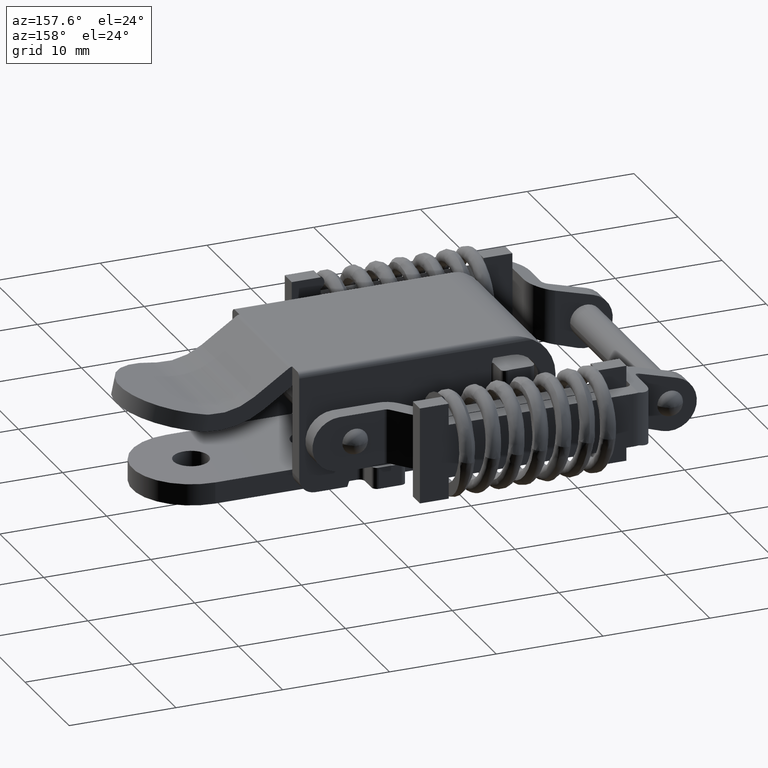
[diagram: clean part render]
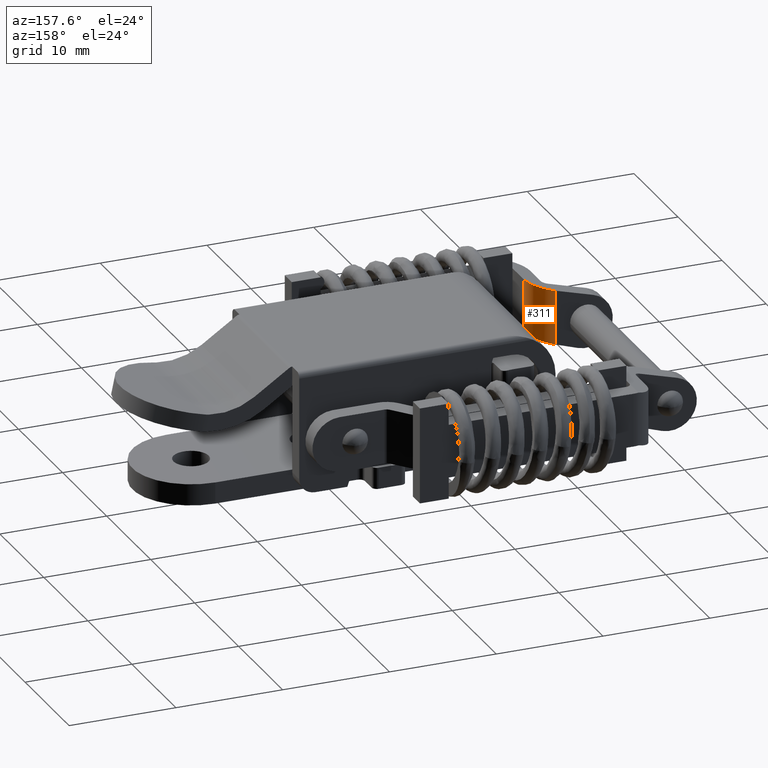
[diagram: same view with one face highlighted and labeled with its STEP entity id]
A machine part, auxiliary view. The second image highlights one B-rep face of the part: STEP entity #311.
In plain terms, the highlighted cylindrical surface (edge-blend (fillet) strip) has radius 2.1 mm, axis along (0, 0, -1).
Its self-contained STEP definition (entity closure, byte-faithful):
#311=ADVANCED_FACE('',(#1349),#1348,.T.);
#1348=CYLINDRICAL_SURFACE('',#7454,2.10000000000E+00);
#1349=FACE_OUTER_BOUND('',#7455,.T.);
#7451=CARTESIAN_POINT('',(-1.08500000000E+01,3.42173576355E-01,2.66000000000E+01));
#7452=DIRECTION('',(-0.00000000000E+00,1.00000000000E+00,0.00000000000E+00));
#7453=DIRECTION('',(0.00000000000E+00,-0.00000000000E+00,1.00000000000E+00));
#7454=AXIS2_PLACEMENT_3D('',#7451,#7452,#7453);
#7455=EDGE_LOOP('',(#9584,#9585,#9586,#9587));
#9584=ORIENTED_EDGE('',*,*,#11019,.T.);
#9585=ORIENTED_EDGE('',*,*,#11020,.T.);
#9586=ORIENTED_EDGE('',*,*,#11021,.T.);
#9587=ORIENTED_EDGE('',*,*,#11022,.T.);
#11019=EDGE_CURVE('',#12821,#12822,#12823,.T.);
#11020=EDGE_CURVE('',#12822,#12829,#12830,.T.);
#11021=EDGE_CURVE('',#12829,#12836,#12837,.T.);
#11022=EDGE_CURVE('',#12836,#12821,#12843,.T.);
#12821=VERTEX_POINT('',#18371);
#12822=VERTEX_POINT('',#18372);
#12823=(BOUNDED_CURVE() B_SPLINE_CURVE(2,(#18373,#18374,#18375),.UNSPECIFIED.,.F.,.F.) B_SPLINE_CURVE_WITH_KNOTS((3,3),(-6.28318530718E+00,-4.71238898038E+00),.UNSPECIFIED.) CURVE() GEOMETRIC_REPRESENTATION_ITEM() RATIONAL_B_SPLINE_CURVE((1.00000000000E+00,7.07106781187E-01,1.00000000000E+00)) REPRESENTATION_ITEM('') );
#12829=VERTEX_POINT('',#18376);
#12830=LINE('',#18377,#18378);
#12836=VERTEX_POINT('',#18380);
#12837=(BOUNDED_CURVE() B_SPLINE_CURVE(2,(#18381,#18382,#18383),.UNSPECIFIED.,.F.,.F.) B_SPLINE_CURVE_WITH_KNOTS((3,3),(-1.57079632679E+00,-0.00000000000E+00),.UNSPECIFIED.) CURVE() GEOMETRIC_REPRESENTATION_ITEM() RATIONAL_B_SPLINE_CURVE((1.00000000000E+00,7.07106781187E-01,1.00000000000E+00)) REPRESENTATION_ITEM('') );
#12843=LINE('',#18384,#18385);
#18371=CARTESIAN_POINT('',(-1.08500000000E+01,2.49999999998E+00,2.45000000000E+01));
#18372=CARTESIAN_POINT('',(-8.74999999999E+00,3.18434721841E+00,2.66000000000E+01));
#18373=CARTESIAN_POINT('',(-1.08500000000E+01,2.49999999998E+00,2.45000000000E+01));
#18374=CARTESIAN_POINT('',(-8.74999999999E+00,2.49999999998E+00,2.45000000000E+01));
#18375=CARTESIAN_POINT('',(-8.74999999999E+00,3.18434721841E+00,2.66000000000E+01));
#18376=CARTESIAN_POINT('',(-8.74999999999E+00,-1.91057565717E+00,2.66000000000E+01));
#18377=CARTESIAN_POINT('',(-8.74999999999E+00,3.18434721841E+00,2.66000000000E+01));
#18378=VECTOR('',#18379,5.09492287558E+00);
#18379=DIRECTION('',(0.00000000000E+00,-1.00000000000E+00,0.00000000000E+00));
#18380=CARTESIAN_POINT('',(-1.08500000000E+01,-2.50000000002E+00,2.45000000000E+01));
#18381=CARTESIAN_POINT('',(-8.74999999999E+00,-1.91057565717E+00,2.66000000000E+01));
#18382=CARTESIAN_POINT('',(-8.74999999999E+00,-2.50000000002E+00,2.45000000000E+01));
#18383=CARTESIAN_POINT('',(-1.08500000000E+01,-2.50000000002E+00,2.45000000000E+01));
#18384=CARTESIAN_POINT('',(-1.08500000000E+01,-2.50000000002E+00,2.45000000000E+01));
#18385=VECTOR('',#18386,5.00000000000E+00);
#18386=DIRECTION('',(0.00000000000E+00,1.00000000000E+00,0.00000000000E+00));